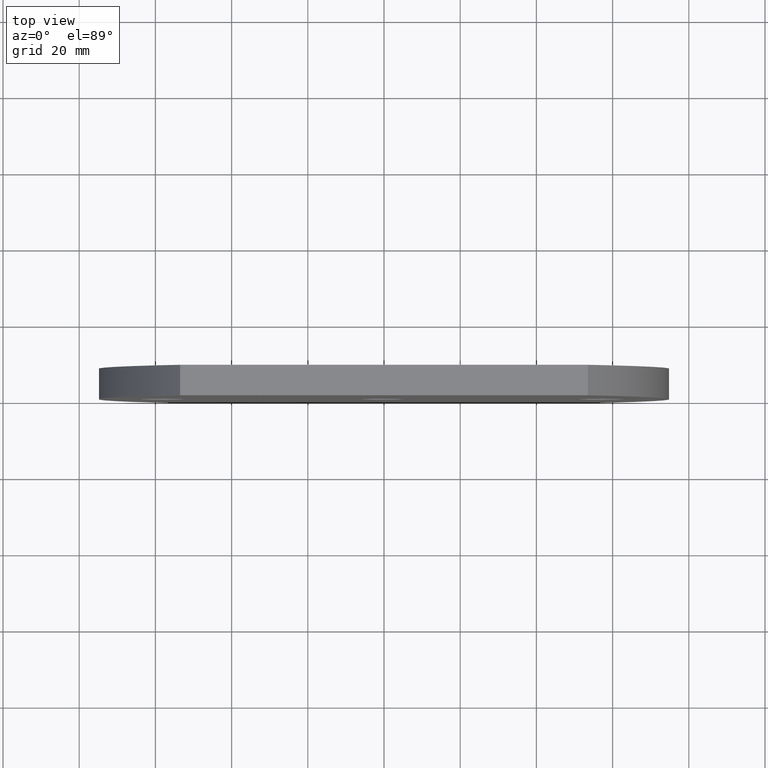
[diagram: clean part render]
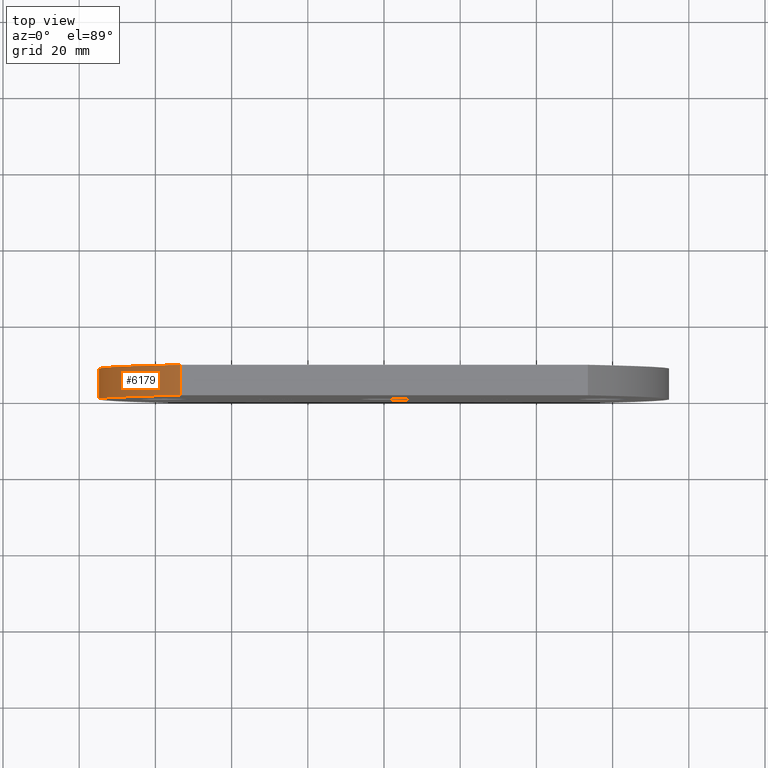
[diagram: same view with one face highlighted and labeled with its STEP entity id]
A machine part, top view. The second image highlights one B-rep face of the part: STEP entity #6179.
In plain terms, the highlighted cylindrical surface (partial cylindrical patch) has radius 94.4709 mm, axis along (-0, -1, -0).
Its self-contained STEP definition (entity closure, byte-faithful):
#215 = DIRECTION ( 'NONE',  ( -0.0000000000000000000, -1.000000000000000000, -0.0000000000000000000 ) ) ;
#1081 = VERTEX_POINT ( 'NONE', #10102 ) ;
#1989 = AXIS2_PLACEMENT_3D ( 'NONE', #8631, #6955, #10210 ) ;
#2294 = VECTOR ( 'NONE', #215, 1000.000000000000000 ) ;
#2505 = DIRECTION ( 'NONE',  ( -0.0000000000000000000, -1.000000000000000000, -0.0000000000000000000 ) ) ;
#2530 = DIRECTION ( 'NONE',  ( -0.0000000000000000000, -1.000000000000000000, -0.0000000000000000000 ) ) ;
#2770 = CIRCLE ( 'NONE', #9075, 94.47093023255810400 ) ;
#3093 = VERTEX_POINT ( 'NONE', #3795 ) ;
#3484 = ORIENTED_EDGE ( 'NONE', *, *, #9317, .T. ) ;
#3759 = EDGE_LOOP ( 'NONE', ( #5953, #7137, #6828, #3484 ) ) ;
#3795 = CARTESIAN_POINT ( 'NONE',  ( -53.49999999999995000, 0.0000000000000000000, -60.00000000000004300 ) ) ;
#3919 = EDGE_CURVE ( 'NONE', #1081, #10043, #9422, .T. ) ;
#4064 = DIRECTION ( 'NONE',  ( 0.0000000000000000000, 0.0000000000000000000, 1.000000000000000000 ) ) ;
#4380 = CARTESIAN_POINT ( 'NONE',  ( -53.49999999999999300, 8.000000000000000000, 60.00000000000000000 ) ) ;
#4477 = LINE ( 'NONE', #7300, #8582 ) ;
#4801 = CARTESIAN_POINT ( 'NONE',  ( 19.47093023255811100, 8.000000000000000000, 0.0000000000000000000 ) ) ;
#4840 = CIRCLE ( 'NONE', #1989, 94.47093023255810400 ) ;
#4863 = DIRECTION ( 'NONE',  ( 0.0000000000000000000, 0.0000000000000000000, -1.000000000000000000 ) ) ;
#5515 = DIRECTION ( 'NONE',  ( 0.0000000000000000000, 1.000000000000000000, 0.0000000000000000000 ) ) ;
#5707 = CARTESIAN_POINT ( 'NONE',  ( -53.49999999999999300, 0.0000000000000000000, 60.00000000000000000 ) ) ;
#5730 = EDGE_CURVE ( 'NONE', #9815, #1081, #2770, .T. ) ;
#5953 = ORIENTED_EDGE ( 'NONE', *, *, #8478, .T. ) ;
#5966 = FACE_OUTER_BOUND ( 'NONE', #3759, .T. ) ;
#6179 = ADVANCED_FACE ( 'NONE', ( #5966 ), #8916, .T. ) ;
#6828 = ORIENTED_EDGE ( 'NONE', *, *, #5730, .F. ) ;
#6955 = DIRECTION ( 'NONE',  ( 0.0000000000000000000, 1.000000000000000000, 0.0000000000000000000 ) ) ;
#7137 = ORIENTED_EDGE ( 'NONE', *, *, #3919, .F. ) ;
#7300 = CARTESIAN_POINT ( 'NONE',  ( -53.49999999999995000, 8.000000000000000000, -60.00000000000004300 ) ) ;
#8023 = CARTESIAN_POINT ( 'NONE',  ( 19.47093023255811100, 8.000000000000000000, 0.0000000000000000000 ) ) ;
#8083 = AXIS2_PLACEMENT_3D ( 'NONE', #8023, #2505, #4863 ) ;
#8478 = EDGE_CURVE ( 'NONE', #3093, #10043, #4840, .T. ) ;
#8582 = VECTOR ( 'NONE', #2530, 1000.000000000000000 ) ;
#8631 = CARTESIAN_POINT ( 'NONE',  ( 19.47093023255811100, 0.0000000000000000000, 0.0000000000000000000 ) ) ;
#8916 = CYLINDRICAL_SURFACE ( 'NONE', #8083, 94.47093023255810400 ) ;
#9075 = AXIS2_PLACEMENT_3D ( 'NONE', #4801, #5515, #4064 ) ;
#9317 = EDGE_CURVE ( 'NONE', #9815, #3093, #4477, .T. ) ;
#9422 = LINE ( 'NONE', #4380, #2294 ) ;
#9815 = VERTEX_POINT ( 'NONE', #9870 ) ;
#9870 = CARTESIAN_POINT ( 'NONE',  ( -53.49999999999995000, 8.000000000000000000, -60.00000000000004300 ) ) ;
#10043 = VERTEX_POINT ( 'NONE', #5707 ) ;
#10102 = CARTESIAN_POINT ( 'NONE',  ( -53.49999999999999300, 8.000000000000000000, 60.00000000000000000 ) ) ;
#10210 = DIRECTION ( 'NONE',  ( 0.0000000000000000000, 0.0000000000000000000, 1.000000000000000000 ) ) ;